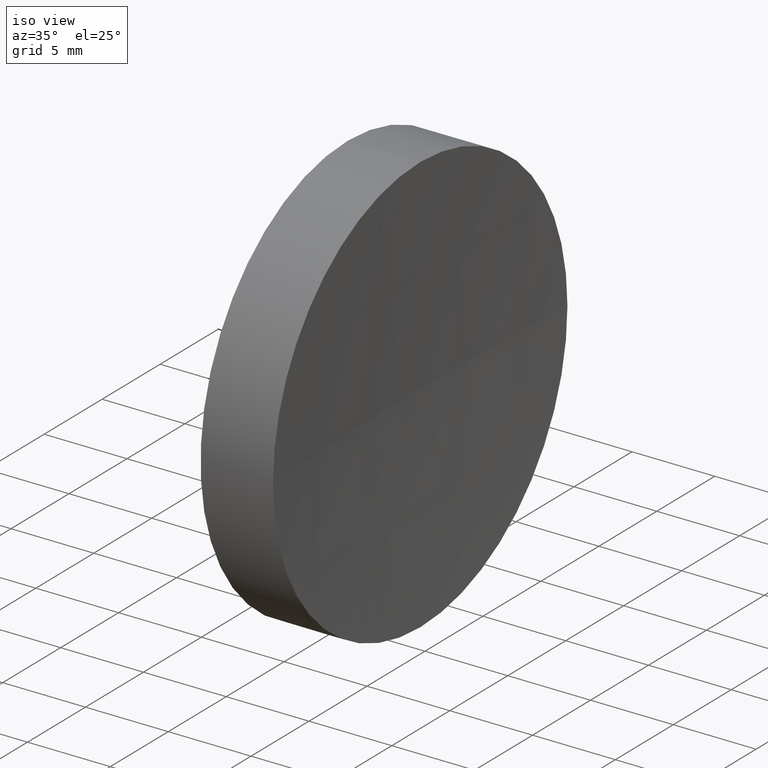
[diagram: clean part render]
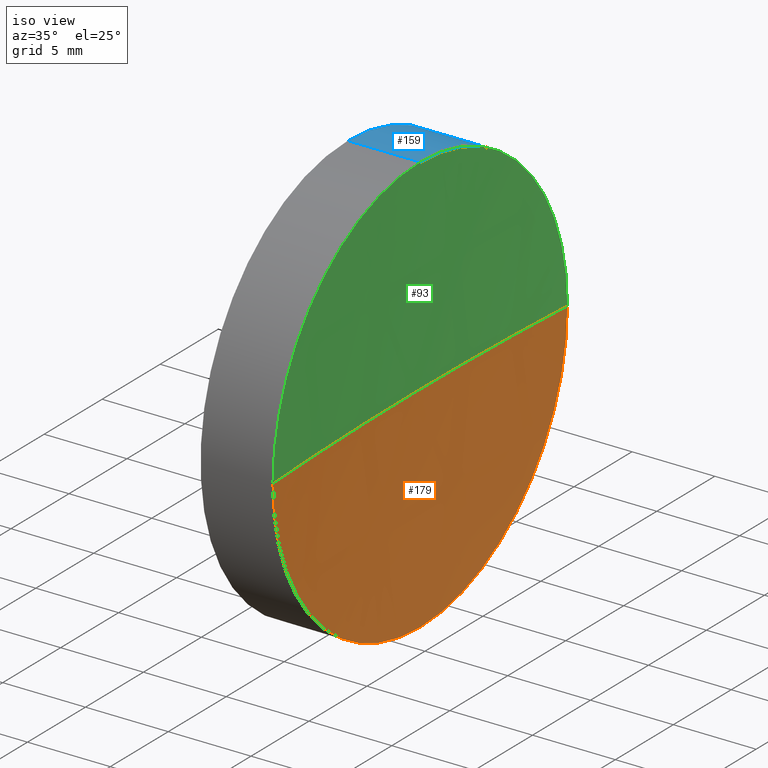
[diagram: same view with three faces highlighted in distinct colors, each labeled with its STEP entity id]
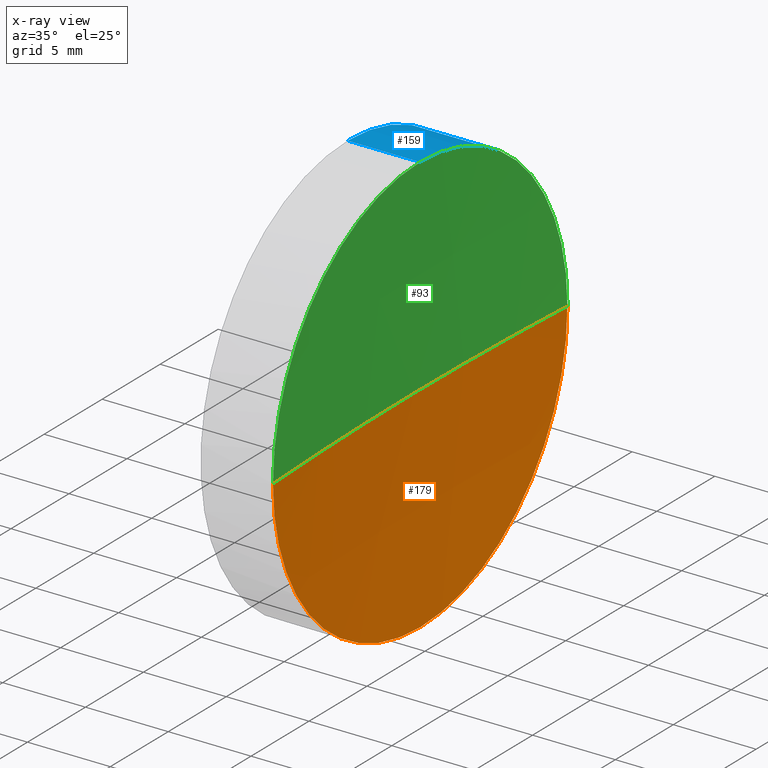
[diagram: x-ray of the same camera — body ghosted, the three highlighted faces saturated]
A machine part, iso view with three faces highlighted in distinct colors.
The next image is the same camera in x-ray (body ghosted, the three faces saturated) — at least one of them is partly hidden behind the body in this view.
Their STEP definitions:

[orange] entity #179 — the highlighted spherical surface has radius 216.9 mm.
#2 = CIRCLE ( 'NONE', #3, 216.8999999999999800 ) ;
#3 = AXIS2_PLACEMENT_3D ( 'NONE', #7, #108, #54 ) ;
#5 = DIRECTION ( 'NONE',  ( 0.0000000000000000000, -1.000000000000000000, -1.224646799147353200E-016 ) ) ;
#7 = CARTESIAN_POINT ( 'NONE',  ( 340.4068341785476800, 71.19398908659371700, 0.0000000000000000000 ) ) ;
#8 = DIRECTION ( 'NONE',  ( 0.0000000000000000000, 0.0000000000000000000, 1.000000000000000000 ) ) ;
#13 = AXIS2_PLACEMENT_3D ( 'NONE', #105, #148, #128 ) ;
#14 = CIRCLE ( 'NONE', #184, 216.8999999999999800 ) ;
#15 = ORIENTED_EDGE ( 'NONE', *, *, #118, .F. ) ;
#16 = ORIENTED_EDGE ( 'NONE', *, *, #146, .T. ) ;
#28 = EDGE_LOOP ( 'NONE', ( #15, #16, #129, #103 ) ) ;
#50 = DIRECTION ( 'NONE',  ( 0.0000000000000000000, -1.224646799147353200E-016, 1.000000000000000000 ) ) ;
#52 = CARTESIAN_POINT ( 'NONE',  ( 123.8789606841636000, 83.89398908659374900, 1.555301434917142400E-015 ) ) ;
#54 = DIRECTION ( 'NONE',  ( -1.000000000000000000, 0.0000000000000000000, 0.0000000000000000000 ) ) ;
#59 = CIRCLE ( 'NONE', #13, 12.70000000000001700 ) ;
#62 = AXIS2_PLACEMENT_3D ( 'NONE', #122, #81, #66 ) ;
#64 = VERTEX_POINT ( 'NONE', #112 ) ;
#66 = DIRECTION ( 'NONE',  ( 0.0000000000000000000, -1.000000000000000000, 0.0000000000000000000 ) ) ;
#81 = DIRECTION ( 'NONE',  ( 0.0000000000000000000, 0.0000000000000000000, 1.000000000000000000 ) ) ;
#87 = AXIS2_PLACEMENT_3D ( 'NONE', #183, #96, #8 ) ;
#88 = FACE_OUTER_BOUND ( 'NONE', #28, .T. ) ;
#95 = CARTESIAN_POINT ( 'NONE',  ( 340.4068341785476800, 71.19398908659371700, 0.0000000000000000000 ) ) ;
#96 = DIRECTION ( 'NONE',  ( -1.000000000000000000, -0.0000000000000000000, -0.0000000000000000000 ) ) ;
#103 = ORIENTED_EDGE ( 'NONE', *, *, #166, .F. ) ;
#105 = CARTESIAN_POINT ( 'NONE',  ( 123.8789606841635900, 71.19398908659370300, 0.0000000000000000000 ) ) ;
#108 = DIRECTION ( 'NONE',  ( 0.0000000000000000000, 0.0000000000000000000, -1.000000000000000000 ) ) ;
#112 = CARTESIAN_POINT ( 'NONE',  ( 123.8789606841636000, 58.49398908659367200, 0.0000000000000000000 ) ) ;
#116 = VERTEX_POINT ( 'NONE', #162 ) ;
#118 = EDGE_CURVE ( 'NONE', #169, #171, #152, .T. ) ;
#122 = CARTESIAN_POINT ( 'NONE',  ( 340.4068341785476800, 71.19398908659371700, 0.0000000000000000000 ) ) ;
#128 = DIRECTION ( 'NONE',  ( 0.0000000000000000000, 0.0000000000000000000, 1.000000000000000000 ) ) ;
#129 = ORIENTED_EDGE ( 'NONE', *, *, #154, .F. ) ;
#146 = EDGE_CURVE ( 'NONE', #169, #116, #14, .T. ) ;
#148 = DIRECTION ( 'NONE',  ( -1.000000000000000000, -0.0000000000000000000, -0.0000000000000000000 ) ) ;
#152 = CIRCLE ( 'NONE', #87, 12.70000000000001700 ) ;
#154 = EDGE_CURVE ( 'NONE', #64, #116, #2, .T. ) ;
#156 = SPHERICAL_SURFACE ( 'NONE', #62, 216.8999999999999800 ) ;
#157 = CARTESIAN_POINT ( 'NONE',  ( 123.8789606841635900, 71.19398908659370300, -12.70000000000001500 ) ) ;
#162 = CARTESIAN_POINT ( 'NONE',  ( 123.5068341785476900, 71.19398908659370300, 0.0000000000000000000 ) ) ;
#166 = EDGE_CURVE ( 'NONE', #171, #64, #59, .T. ) ;
#169 = VERTEX_POINT ( 'NONE', #52 ) ;
#171 = VERTEX_POINT ( 'NONE', #157 ) ;
#179 = ADVANCED_FACE ( 'NONE', ( #88 ), #156, .F. ) ;
#183 = CARTESIAN_POINT ( 'NONE',  ( 123.8789606841635900, 71.19398908659370300, 0.0000000000000000000 ) ) ;
#184 = AXIS2_PLACEMENT_3D ( 'NONE', #95, #50, #5 ) ;

[blue] entity #159 — the highlighted cylindrical surface (partial cylindrical patch) has radius 12.7 mm, axis along (-1, -0, -0).
#1 = EDGE_CURVE ( 'NONE', #71, #185, #38, .T. ) ;
#6 = DIRECTION ( 'NONE',  ( -1.000000000000000000, -0.0000000000000000000, -0.0000000000000000000 ) ) ;
#8 = DIRECTION ( 'NONE',  ( 0.0000000000000000000, 0.0000000000000000000, 1.000000000000000000 ) ) ;
#10 = CYLINDRICAL_SURFACE ( 'NONE', #24, 12.70000000000001000 ) ;
#11 = AXIS2_PLACEMENT_3D ( 'NONE', #35, #36, #145 ) ;
#12 = CIRCLE ( 'NONE', #11, 12.70000000000001700 ) ;
#18 = DIRECTION ( 'NONE',  ( 0.0000000000000000000, 0.0000000000000000000, 1.000000000000000000 ) ) ;
#24 = AXIS2_PLACEMENT_3D ( 'NONE', #39, #6, #18 ) ;
#31 = EDGE_CURVE ( 'NONE', #171, #185, #32, .T. ) ;
#32 = LINE ( 'NONE', #56, #181 ) ;
#35 = CARTESIAN_POINT ( 'NONE',  ( 123.8789606841635900, 71.19398908659370300, 0.0000000000000000000 ) ) ;
#36 = DIRECTION ( 'NONE',  ( -1.000000000000000000, -0.0000000000000000000, -0.0000000000000000000 ) ) ;
#38 = CIRCLE ( 'NONE', #44, 12.70000000000000300 ) ;
#39 = CARTESIAN_POINT ( 'NONE',  ( 111.9552297575605700, 71.19398908659370300, 0.0000000000000000000 ) ) ;
#43 = CARTESIAN_POINT ( 'NONE',  ( 119.5068341785477100, 71.19398908659370300, 0.0000000000000000000 ) ) ;
#44 = AXIS2_PLACEMENT_3D ( 'NONE', #43, #150, #53 ) ;
#52 = CARTESIAN_POINT ( 'NONE',  ( 123.8789606841636000, 83.89398908659374900, 1.555301434917142400E-015 ) ) ;
#53 = DIRECTION ( 'NONE',  ( 0.0000000000000000000, 0.0000000000000000000, 1.000000000000000000 ) ) ;
#56 = CARTESIAN_POINT ( 'NONE',  ( 111.9552297575605700, 71.19398908659370300, -12.70000000000001000 ) ) ;
#65 = DIRECTION ( 'NONE',  ( -1.000000000000000000, -0.0000000000000000000, -0.0000000000000000000 ) ) ;
#67 = EDGE_LOOP ( 'NONE', ( #106, #153, #137, #134, #135 ) ) ;
#70 = CARTESIAN_POINT ( 'NONE',  ( 111.9552297575605700, 71.19398908659370300, 12.70000000000001000 ) ) ;
#71 = VERTEX_POINT ( 'NONE', #149 ) ;
#85 = EDGE_CURVE ( 'NONE', #138, #71, #117, .T. ) ;
#87 = AXIS2_PLACEMENT_3D ( 'NONE', #183, #96, #8 ) ;
#91 = CARTESIAN_POINT ( 'NONE',  ( 123.8789606841635900, 71.19398908659370300, 12.70000000000001500 ) ) ;
#96 = DIRECTION ( 'NONE',  ( -1.000000000000000000, -0.0000000000000000000, -0.0000000000000000000 ) ) ;
#106 = ORIENTED_EDGE ( 'NONE', *, *, #118, .T. ) ;
#117 = LINE ( 'NONE', #70, #172 ) ;
#118 = EDGE_CURVE ( 'NONE', #169, #171, #152, .T. ) ;
#126 = FACE_OUTER_BOUND ( 'NONE', #67, .T. ) ;
#134 = ORIENTED_EDGE ( 'NONE', *, *, #85, .F. ) ;
#135 = ORIENTED_EDGE ( 'NONE', *, *, #163, .T. ) ;
#137 = ORIENTED_EDGE ( 'NONE', *, *, #1, .F. ) ;
#138 = VERTEX_POINT ( 'NONE', #91 ) ;
#141 = CARTESIAN_POINT ( 'NONE',  ( 119.5068341785477100, 71.19398908659370300, -12.70000000000000300 ) ) ;
#145 = DIRECTION ( 'NONE',  ( 0.0000000000000000000, 0.0000000000000000000, 1.000000000000000000 ) ) ;
#149 = CARTESIAN_POINT ( 'NONE',  ( 119.5068341785477100, 71.19398908659370300, 12.70000000000000300 ) ) ;
#150 = DIRECTION ( 'NONE',  ( -1.000000000000000000, -0.0000000000000000000, -0.0000000000000000000 ) ) ;
#152 = CIRCLE ( 'NONE', #87, 12.70000000000001700 ) ;
#153 = ORIENTED_EDGE ( 'NONE', *, *, #31, .T. ) ;
#157 = CARTESIAN_POINT ( 'NONE',  ( 123.8789606841635900, 71.19398908659370300, -12.70000000000001500 ) ) ;
#159 = ADVANCED_FACE ( 'NONE', ( #126 ), #10, .T. ) ;
#163 = EDGE_CURVE ( 'NONE', #138, #169, #12, .T. ) ;
#169 = VERTEX_POINT ( 'NONE', #52 ) ;
#171 = VERTEX_POINT ( 'NONE', #157 ) ;
#172 = VECTOR ( 'NONE', #65, 1000.000000000000000 ) ;
#180 = DIRECTION ( 'NONE',  ( -1.000000000000000000, -0.0000000000000000000, -0.0000000000000000000 ) ) ;
#181 = VECTOR ( 'NONE', #180, 1000.000000000000000 ) ;
#183 = CARTESIAN_POINT ( 'NONE',  ( 123.8789606841635900, 71.19398908659370300, 0.0000000000000000000 ) ) ;
#185 = VERTEX_POINT ( 'NONE', #141 ) ;

[green] entity #93 — the highlighted spherical surface has radius 216.9 mm.
#2 = CIRCLE ( 'NONE', #3, 216.8999999999999800 ) ;
#3 = AXIS2_PLACEMENT_3D ( 'NONE', #7, #108, #54 ) ;
#5 = DIRECTION ( 'NONE',  ( 0.0000000000000000000, -1.000000000000000000, -1.224646799147353200E-016 ) ) ;
#7 = CARTESIAN_POINT ( 'NONE',  ( 340.4068341785476800, 71.19398908659371700, 0.0000000000000000000 ) ) ;
#11 = AXIS2_PLACEMENT_3D ( 'NONE', #35, #36, #145 ) ;
#12 = CIRCLE ( 'NONE', #11, 12.70000000000001700 ) ;
#14 = CIRCLE ( 'NONE', #184, 216.8999999999999800 ) ;
#19 = DIRECTION ( 'NONE',  ( -1.000000000000000000, -0.0000000000000000000, -0.0000000000000000000 ) ) ;
#25 = ORIENTED_EDGE ( 'NONE', *, *, #154, .T. ) ;
#34 = AXIS2_PLACEMENT_3D ( 'NONE', #68, #19, #132 ) ;
#35 = CARTESIAN_POINT ( 'NONE',  ( 123.8789606841635900, 71.19398908659370300, 0.0000000000000000000 ) ) ;
#36 = DIRECTION ( 'NONE',  ( -1.000000000000000000, -0.0000000000000000000, -0.0000000000000000000 ) ) ;
#40 = DIRECTION ( 'NONE',  ( 0.0000000000000000000, 0.0000000000000000000, 1.000000000000000000 ) ) ;
#47 = CIRCLE ( 'NONE', #34, 12.70000000000001700 ) ;
#50 = DIRECTION ( 'NONE',  ( 0.0000000000000000000, -1.224646799147353200E-016, 1.000000000000000000 ) ) ;
#52 = CARTESIAN_POINT ( 'NONE',  ( 123.8789606841636000, 83.89398908659374900, 1.555301434917142400E-015 ) ) ;
#54 = DIRECTION ( 'NONE',  ( -1.000000000000000000, 0.0000000000000000000, 0.0000000000000000000 ) ) ;
#64 = VERTEX_POINT ( 'NONE', #112 ) ;
#68 = CARTESIAN_POINT ( 'NONE',  ( 123.8789606841635900, 71.19398908659370300, 0.0000000000000000000 ) ) ;
#84 = AXIS2_PLACEMENT_3D ( 'NONE', #176, #40, #133 ) ;
#86 = ORIENTED_EDGE ( 'NONE', *, *, #163, .F. ) ;
#91 = CARTESIAN_POINT ( 'NONE',  ( 123.8789606841635900, 71.19398908659370300, 12.70000000000001500 ) ) ;
#93 = ADVANCED_FACE ( 'NONE', ( #186 ), #124, .F. ) ;
#95 = CARTESIAN_POINT ( 'NONE',  ( 340.4068341785476800, 71.19398908659371700, 0.0000000000000000000 ) ) ;
#98 = EDGE_LOOP ( 'NONE', ( #143, #86, #110, #25 ) ) ;
#108 = DIRECTION ( 'NONE',  ( 0.0000000000000000000, 0.0000000000000000000, -1.000000000000000000 ) ) ;
#110 = ORIENTED_EDGE ( 'NONE', *, *, #114, .F. ) ;
#112 = CARTESIAN_POINT ( 'NONE',  ( 123.8789606841636000, 58.49398908659367200, 0.0000000000000000000 ) ) ;
#114 = EDGE_CURVE ( 'NONE', #64, #138, #47, .T. ) ;
#116 = VERTEX_POINT ( 'NONE', #162 ) ;
#124 = SPHERICAL_SURFACE ( 'NONE', #84, 216.8999999999999800 ) ;
#132 = DIRECTION ( 'NONE',  ( 0.0000000000000000000, 0.0000000000000000000, 1.000000000000000000 ) ) ;
#133 = DIRECTION ( 'NONE',  ( 0.0000000000000000000, -1.000000000000000000, 0.0000000000000000000 ) ) ;
#138 = VERTEX_POINT ( 'NONE', #91 ) ;
#143 = ORIENTED_EDGE ( 'NONE', *, *, #146, .F. ) ;
#145 = DIRECTION ( 'NONE',  ( 0.0000000000000000000, 0.0000000000000000000, 1.000000000000000000 ) ) ;
#146 = EDGE_CURVE ( 'NONE', #169, #116, #14, .T. ) ;
#154 = EDGE_CURVE ( 'NONE', #64, #116, #2, .T. ) ;
#162 = CARTESIAN_POINT ( 'NONE',  ( 123.5068341785476900, 71.19398908659370300, 0.0000000000000000000 ) ) ;
#163 = EDGE_CURVE ( 'NONE', #138, #169, #12, .T. ) ;
#169 = VERTEX_POINT ( 'NONE', #52 ) ;
#176 = CARTESIAN_POINT ( 'NONE',  ( 340.4068341785476800, 71.19398908659371700, 0.0000000000000000000 ) ) ;
#184 = AXIS2_PLACEMENT_3D ( 'NONE', #95, #50, #5 ) ;
#186 = FACE_OUTER_BOUND ( 'NONE', #98, .T. ) ;